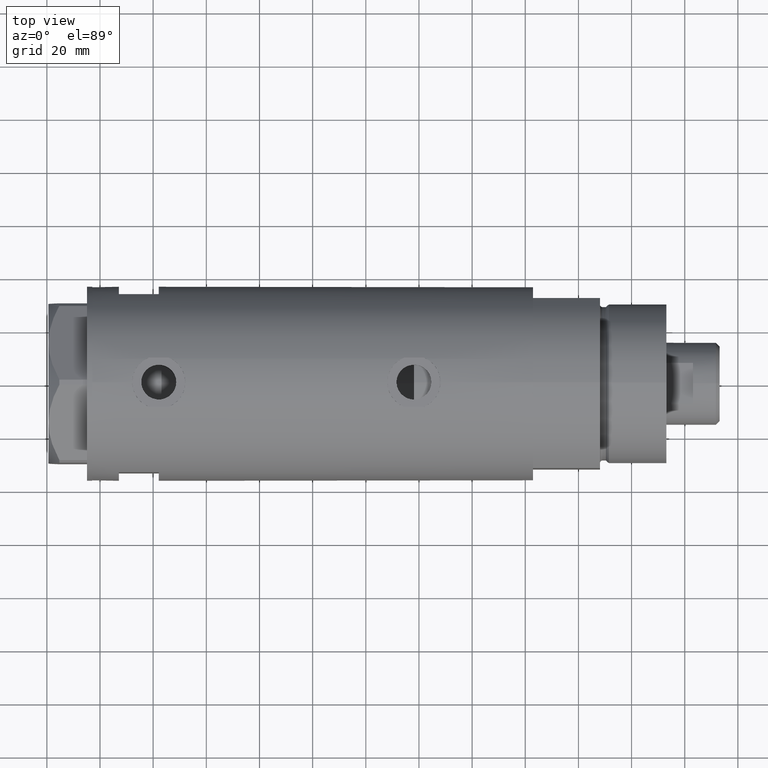
[diagram: clean part render]
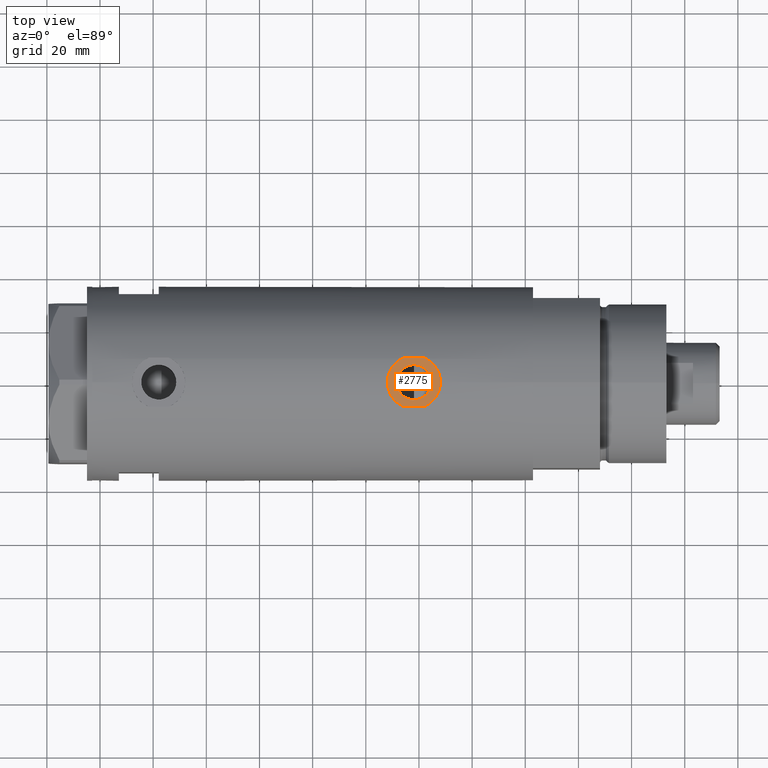
[diagram: same view with one face highlighted and labeled with its STEP entity id]
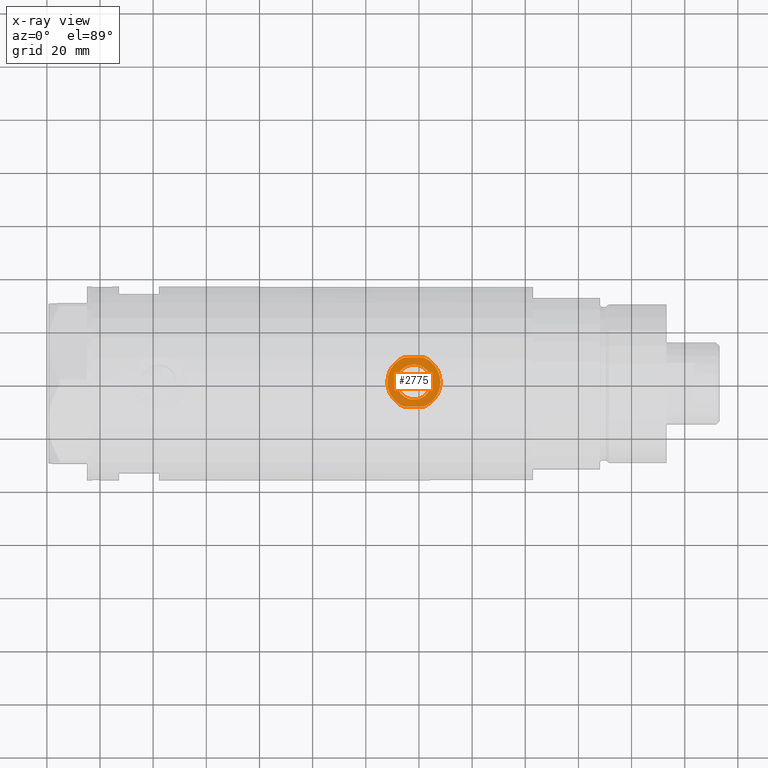
[diagram: x-ray of the same camera — body ghosted, the highlighted face saturated]
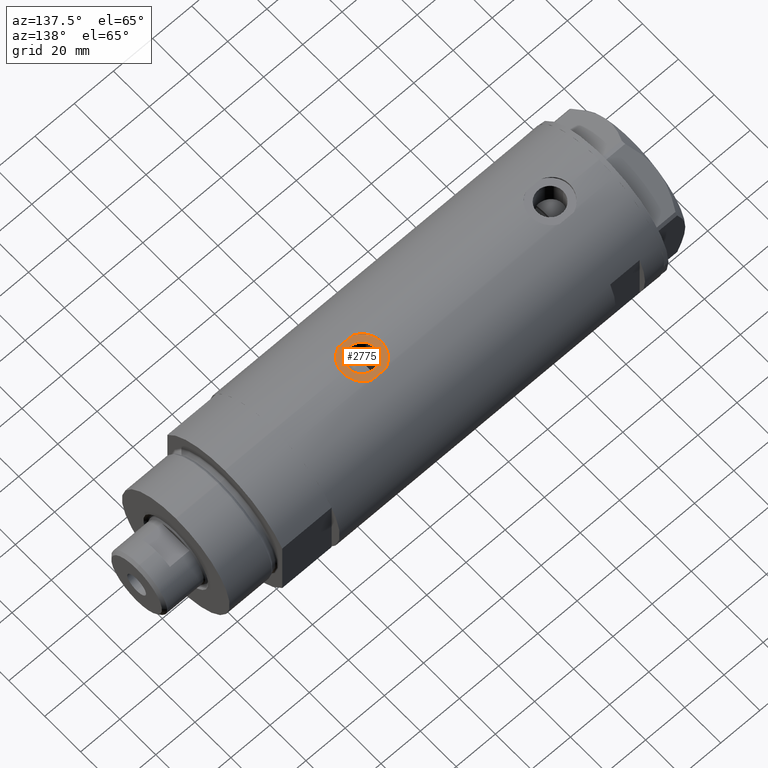
[diagram: same view with one face highlighted and labeled with its STEP entity id]
A machine part, top view. The second image highlights one B-rep face of the part: STEP entity #2775.
The next image is the same camera in x-ray: the body ghosted, the highlighted face saturated — about 0% of this face is hidden behind the body in this view.
A second angle (auxiliary view) of the same face is appended — the face is thin or edge-on in the first view.
In plain terms, the highlighted planar face has unit normal (0, 0, 1).
Its self-contained STEP definition (entity closure, byte-faithful):
#10 = CARTESIAN_POINT ( 'NONE',  ( 35.29999999999999716, 0.000000000000000000, -48.10000000000000142 ) ) ;
#41 = EDGE_CURVE ( 'NONE', #401, #82, #2721, .T. ) ;
#82 = VERTEX_POINT ( 'NONE', #2519 ) ;
#153 = VERTEX_POINT ( 'NONE', #2598 ) ;
#185 = EDGE_CURVE ( 'NONE', #1620, #2827, #1209, .T. ) ;
#244 = DIRECTION ( 'NONE',  ( -0.000000000000000000, -0.000000000000000000, -1.000000000000000000 ) ) ;
#367 = AXIS2_PLACEMENT_3D ( 'NONE', #2892, #1835, #4258 ) ;
#401 = VERTEX_POINT ( 'NONE', #4234 ) ;
#457 = DIRECTION ( 'NONE',  ( 1.000000000000000000, 0.000000000000000000, 0.000000000000000000 ) ) ;
#667 = LINE ( 'NONE', #3062, #1832 ) ;
#774 = DIRECTION ( 'NONE',  ( 0.000000000000000000, 0.000000000000000000, 1.000000000000000000 ) ) ;
#803 = ORIENTED_EDGE ( 'NONE', *, *, #3784, .T. ) ;
#906 = CARTESIAN_POINT ( 'NONE',  ( 35.29999999999999716, 0.000000000000000000, -38.10000000000000142 ) ) ;
#951 = AXIS2_PLACEMENT_3D ( 'NONE', #1453, #2810, #3147 ) ;
#1094 = CARTESIAN_POINT ( 'NONE',  ( 35.29999999999999716, 0.000000000000000000, -38.10000000000000142 ) ) ;
#1118 = ORIENTED_EDGE ( 'NONE', *, *, #4353, .F. ) ;
#1123 = CARTESIAN_POINT ( 'NONE',  ( 35.29999999999999716, -9.282241108697837362, -34.37978495245235422 ) ) ;
#1190 = ORIENTED_EDGE ( 'NONE', *, *, #41, .F. ) ;
#1209 = CIRCLE ( 'NONE', #3082, 10.00000000000000178 ) ;
#1328 = EDGE_CURVE ( 'NONE', #82, #401, #2085, .T. ) ;
#1433 = LINE ( 'NONE', #2555, #4010 ) ;
#1453 = CARTESIAN_POINT ( 'NONE',  ( 35.29999999999999716, 0.000000000000000000, -38.10000000000000142 ) ) ;
#1524 = VERTEX_POINT ( 'NONE', #2781 ) ;
#1620 = VERTEX_POINT ( 'NONE', #3357 ) ;
#1708 = VERTEX_POINT ( 'NONE', #10 ) ;
#1811 = ORIENTED_EDGE ( 'NONE', *, *, #4472, .T. ) ;
#1814 = FACE_OUTER_BOUND ( 'NONE', #2417, .T. ) ;
#1832 = VECTOR ( 'NONE', #244, 1000.000000000000000 ) ;
#1835 = DIRECTION ( 'NONE',  ( 1.000000000000000000, 0.000000000000000000, 0.000000000000000000 ) ) ;
#1933 = DIRECTION ( 'NONE',  ( 1.000000000000000000, 0.000000000000000000, 0.000000000000000000 ) ) ;
#2032 = ORIENTED_EDGE ( 'NONE', *, *, #3399, .F. ) ;
#2085 = CIRCLE ( 'NONE', #4284, 6.580000000000002736 ) ;
#2131 = DIRECTION ( 'NONE',  ( 0.000000000000000000, 0.000000000000000000, -1.000000000000000000 ) ) ;
#2279 = DIRECTION ( 'NONE',  ( 1.000000000000000000, 0.000000000000000000, 0.000000000000000000 ) ) ;
#2417 = EDGE_LOOP ( 'NONE', ( #3504, #2032, #1811, #803, #1118 ) ) ;
#2424 = FACE_BOUND ( 'NONE', #4221, .T. ) ;
#2519 = CARTESIAN_POINT ( 'NONE',  ( 35.29999999999999716, 8.058175938389587461E-16, -31.51999999999999957 ) ) ;
#2555 = CARTESIAN_POINT ( 'NONE',  ( 35.29999999999999716, -9.282241108697837362, -82.90000000000000568 ) ) ;
#2598 = CARTESIAN_POINT ( 'NONE',  ( 35.29999999999999716, 9.282241108697837362, -41.82021504754764862 ) ) ;
#2721 = CIRCLE ( 'NONE', #367, 6.580000000000002736 ) ;
#2775 = ADVANCED_FACE ( 'NONE', ( #2424, #1814 ), #4161, .T. ) ;
#2781 = CARTESIAN_POINT ( 'NONE',  ( 35.29999999999999716, -9.282241108697837362, -41.82021504754764862 ) ) ;
#2810 = DIRECTION ( 'NONE',  ( 1.000000000000000000, 0.000000000000000000, 0.000000000000000000 ) ) ;
#2827 = VERTEX_POINT ( 'NONE', #1123 ) ;
#2892 = CARTESIAN_POINT ( 'NONE',  ( 35.29999999999999716, 0.000000000000000000, -38.10000000000000142 ) ) ;
#2894 = CIRCLE ( 'NONE', #951, 10.00000000000000178 ) ;
#2906 = AXIS2_PLACEMENT_3D ( 'NONE', #1094, #3086, #3459 ) ;
#3044 = CIRCLE ( 'NONE', #2906, 10.00000000000000178 ) ;
#3062 = CARTESIAN_POINT ( 'NONE',  ( 35.29999999999999716, 9.282241108697837362, -82.90000000000000568 ) ) ;
#3082 = AXIS2_PLACEMENT_3D ( 'NONE', #906, #1933, #3316 ) ;
#3086 = DIRECTION ( 'NONE',  ( 1.000000000000000000, 0.000000000000000000, 0.000000000000000000 ) ) ;
#3147 = DIRECTION ( 'NONE',  ( 0.000000000000000000, 0.000000000000000000, -1.000000000000000000 ) ) ;
#3238 = CARTESIAN_POINT ( 'NONE',  ( 35.29999999999999716, 0.000000000000000000, -38.10000000000000142 ) ) ;
#3316 = DIRECTION ( 'NONE',  ( 0.000000000000000000, 0.000000000000000000, -1.000000000000000000 ) ) ;
#3357 = CARTESIAN_POINT ( 'NONE',  ( 35.29999999999999716, 9.282241108697837362, -34.37978495245235422 ) ) ;
#3399 = EDGE_CURVE ( 'NONE', #1524, #2827, #1433, .T. ) ;
#3459 = DIRECTION ( 'NONE',  ( 0.000000000000000000, 0.000000000000000000, -1.000000000000000000 ) ) ;
#3504 = ORIENTED_EDGE ( 'NONE', *, *, #185, .T. ) ;
#3677 = DIRECTION ( 'NONE',  ( 0.000000000000000000, 0.000000000000000000, -1.000000000000000000 ) ) ;
#3784 = EDGE_CURVE ( 'NONE', #1708, #153, #2894, .T. ) ;
#4010 = VECTOR ( 'NONE', #774, 1000.000000000000000 ) ;
#4066 = AXIS2_PLACEMENT_3D ( 'NONE', #4240, #457, #2131 ) ;
#4161 = PLANE ( 'NONE',  #4066 ) ;
#4221 = EDGE_LOOP ( 'NONE', ( #1190, #4320 ) ) ;
#4234 = CARTESIAN_POINT ( 'NONE',  ( 35.29999999999999716, 0.000000000000000000, -44.68000000000000682 ) ) ;
#4240 = CARTESIAN_POINT ( 'NONE',  ( 35.29999999999999716, 0.000000000000000000, -38.10000000000000142 ) ) ;
#4258 = DIRECTION ( 'NONE',  ( 0.000000000000000000, 0.000000000000000000, -1.000000000000000000 ) ) ;
#4284 = AXIS2_PLACEMENT_3D ( 'NONE', #3238, #2279, #3677 ) ;
#4320 = ORIENTED_EDGE ( 'NONE', *, *, #1328, .F. ) ;
#4353 = EDGE_CURVE ( 'NONE', #1620, #153, #667, .T. ) ;
#4472 = EDGE_CURVE ( 'NONE', #1524, #1708, #3044, .T. ) ;